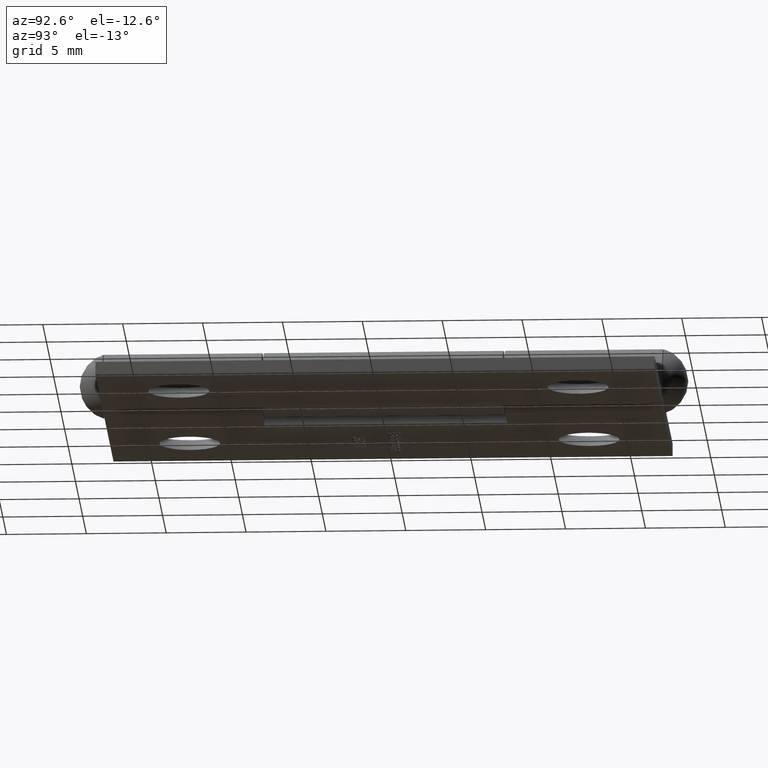
[diagram: clean part render]
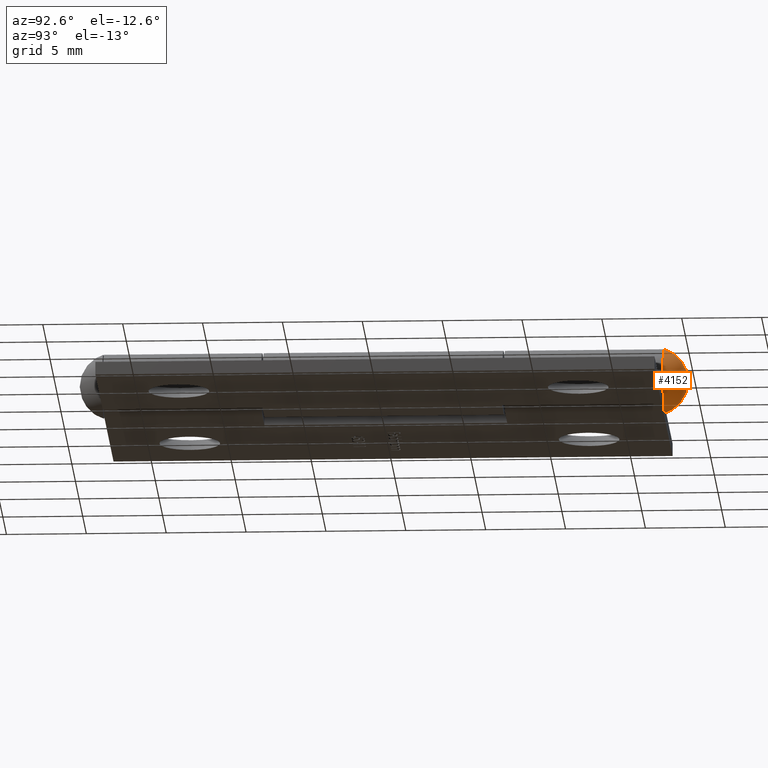
[diagram: same view with one face highlighted and labeled with its STEP entity id]
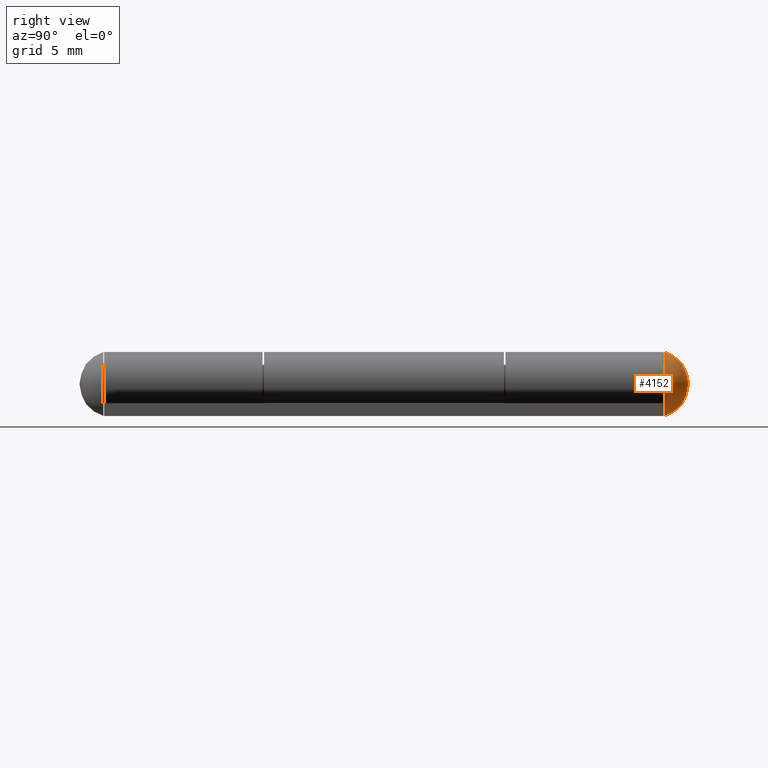
[diagram: same view with one face highlighted and labeled with its STEP entity id]
A machine part, auxiliary view. The second image highlights one B-rep face of the part: STEP entity #4152.
A second angle (right view) of the same face is appended — the face is thin or edge-on in the first view.
In plain terms, the highlighted spherical surface has radius 2.0833 mm.
Its self-contained STEP definition (entity closure, byte-faithful):
#790 = DIRECTION ( 'NONE',  ( 0.000000000000000000, 0.000000000000000000, 1.000000000000000000 ) ) ;
#1881 = AXIS2_PLACEMENT_3D ( 'NONE', #2382, #790, #5645 ) ;
#1924 = FACE_OUTER_BOUND ( 'NONE', #3322, .T. ) ;
#2382 = CARTESIAN_POINT ( 'NONE',  ( 0.000000000000000000, 16.96666666666667567, 0.000000000000000000 ) ) ;
#3322 = EDGE_LOOP ( 'NONE', ( #9167 ) ) ;
#3763 = CARTESIAN_POINT ( 'NONE',  ( 0.000000000000000000, 17.55000000000000071, -1.999999999999995781 ) ) ;
#3880 = SPHERICAL_SURFACE ( 'NONE', #1881, 2.083333333333326820 ) ;
#4152 = ADVANCED_FACE ( 'NONE', ( #1924 ), #3880, .T. ) ;
#5306 = AXIS2_PLACEMENT_3D ( 'NONE', #7221, #9589, #8744 ) ;
#5645 = DIRECTION ( 'NONE',  ( 1.000000000000000000, 0.000000000000000000, 0.000000000000000000 ) ) ;
#6681 = EDGE_CURVE ( 'NONE', #9001, #9001, #7302, .T. ) ;
#7221 = CARTESIAN_POINT ( 'NONE',  ( 0.000000000000000000, 17.55000000000000071, 0.000000000000000000 ) ) ;
#7302 = CIRCLE ( 'NONE', #5306, 1.999999999999995781 ) ;
#8744 = DIRECTION ( 'NONE',  ( 0.000000000000000000, 0.000000000000000000, -1.000000000000000000 ) ) ;
#9001 = VERTEX_POINT ( 'NONE', #3763 ) ;
#9167 = ORIENTED_EDGE ( 'NONE', *, *, #6681, .F. ) ;
#9589 = DIRECTION ( 'NONE',  ( -0.000000000000000000, -1.000000000000000000, -0.000000000000000000 ) ) ;